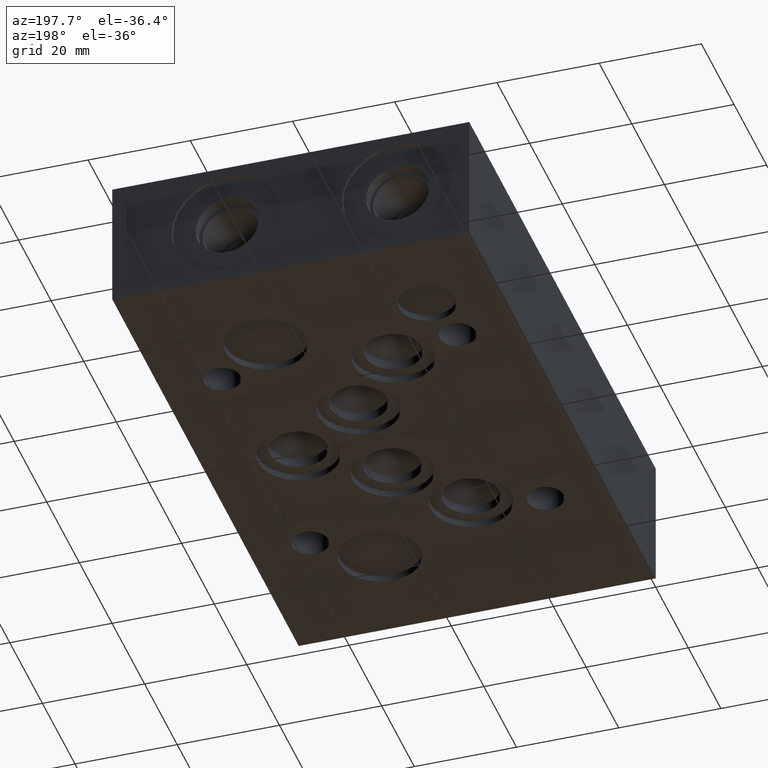
[diagram: clean part render]
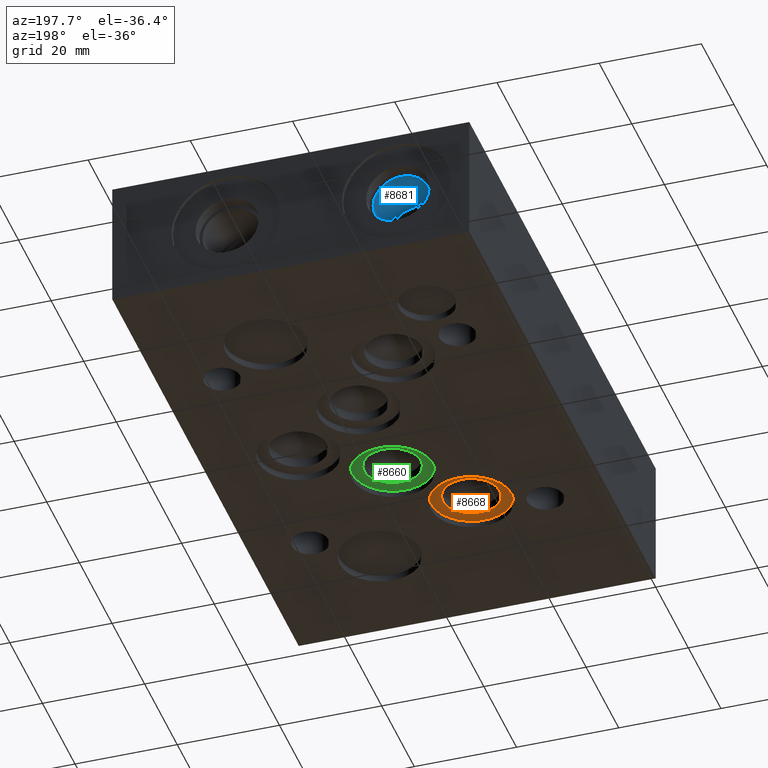
[diagram: same view with three faces highlighted in distinct colors, each labeled with its STEP entity id]
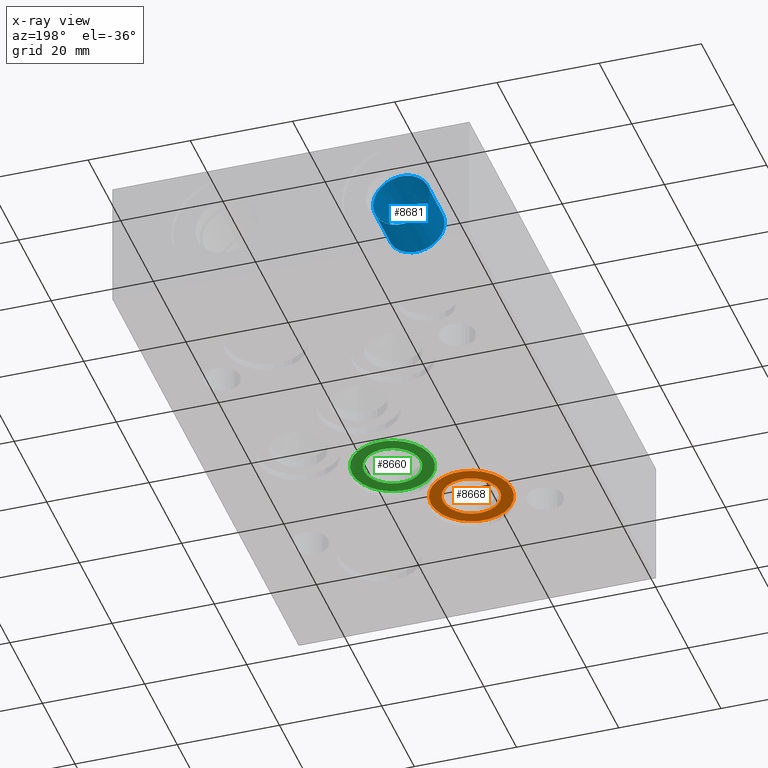
[diagram: x-ray of the same camera — body ghosted, the three highlighted faces saturated]
A machine part, auxiliary view with three faces highlighted in distinct colors.
The next image is the same camera in x-ray (body ghosted, the three faces saturated) — at least one of them is partly hidden behind the body in this view.
Their STEP definitions:

[orange] entity #8668 — the highlighted planar face has unit normal (0, 0, -1).
#50=CIRCLE('',#9076,5.5626);
#62=CIRCLE('',#9099,7.9375);
#220=FACE_BOUND('',#1330,.T.);
#842=FACE_OUTER_BOUND('',#1329,.T.);
#1329=EDGE_LOOP('',(#7284));
#1330=EDGE_LOOP('',(#7285));
#3997=VERTEX_POINT('',#14071);
#4009=VERTEX_POINT('',#14112);
#5113=EDGE_CURVE('',#3997,#3997,#50,.T.);
#5132=EDGE_CURVE('',#4009,#4009,#62,.T.);
#7284=ORIENTED_EDGE('',*,*,#5132,.T.);
#7285=ORIENTED_EDGE('',*,*,#5113,.T.);
#7918=PLANE('',#9100);
#8668=ADVANCED_FACE('',(#842,#220),#7918,.T.);
#9076=AXIS2_PLACEMENT_3D('',#14072,#10750,#10751);
#9099=AXIS2_PLACEMENT_3D('',#14114,#10803,#10804);
#9100=AXIS2_PLACEMENT_3D('',#14115,#10805,#10806);
#10750=DIRECTION('center_axis',(0.,0.,1.));
#10751=DIRECTION('ref_axis',(1.,0.,0.));
#10803=DIRECTION('center_axis',(0.,0.,-1.));
#10804=DIRECTION('ref_axis',(1.,0.,0.));
#10805=DIRECTION('center_axis',(0.,0.,-1.));
#10806=DIRECTION('ref_axis',(1.,0.,0.));
#14071=CARTESIAN_POINT('',(19.8628,33.3502,1.3208));
#14072=CARTESIAN_POINT('Origin',(25.4254,33.3502,1.3208));
#14112=CARTESIAN_POINT('',(17.4879,33.3502,1.3208));
#14114=CARTESIAN_POINT('Origin',(25.4254,33.3502,1.3208));
#14115=CARTESIAN_POINT('Origin',(25.4254,33.3502,1.3208));

[blue] entity #8681 — the highlighted cylindrical surface (bore or boss wall) has radius 5.5626 mm, axis along (0, 1, 0).
#92=CIRCLE('',#9142,5.5626);
#94=CIRCLE('',#9145,5.5626);
#158=CYLINDRICAL_SURFACE('',#9144,5.5626);
#855=FACE_OUTER_BOUND('',#1357,.T.);
#1357=EDGE_LOOP('',(#7358,#7359,#7360,#7361));
#2339=LINE('',#14275,#3276);
#3276=VECTOR('',#10915,5.5626);
#4049=VERTEX_POINT('',#14268);
#4051=VERTEX_POINT('',#14273);
#5183=EDGE_CURVE('',#4049,#4049,#92,.T.);
#5185=EDGE_CURVE('',#4051,#4051,#94,.T.);
#5186=EDGE_CURVE('',#4051,#4049,#2339,.T.);
#7358=ORIENTED_EDGE('',*,*,#5185,.F.);
#7359=ORIENTED_EDGE('',*,*,#5186,.T.);
#7360=ORIENTED_EDGE('',*,*,#5183,.F.);
#7361=ORIENTED_EDGE('',*,*,#5186,.F.);
#8681=ADVANCED_FACE('',(#855),#158,.F.);
#9142=AXIS2_PLACEMENT_3D('',#14269,#10907,#10908);
#9144=AXIS2_PLACEMENT_3D('',#14272,#10911,#10912);
#9145=AXIS2_PLACEMENT_3D('',#14274,#10913,#10914);
#10907=DIRECTION('center_axis',(0.,1.,0.));
#10908=DIRECTION('ref_axis',(1.,0.,0.));
#10911=DIRECTION('center_axis',(0.,1.,0.));
#10912=DIRECTION('ref_axis',(1.,0.,0.));
#10913=DIRECTION('center_axis',(0.,-1.,0.));
#10914=DIRECTION('ref_axis',(1.,0.,0.));
#10915=DIRECTION('',(0.,-1.,0.));
#14268=CARTESIAN_POINT('',(8.7122,102.0064,12.7));
#14269=CARTESIAN_POINT('Origin',(14.2748,102.0064,12.7));
#14272=CARTESIAN_POINT('Origin',(14.2748,108.1532,12.7));
#14273=CARTESIAN_POINT('',(8.7122,111.125,12.7));
#14274=CARTESIAN_POINT('Origin',(14.2748,111.125,12.7));
#14275=CARTESIAN_POINT('',(8.7122,108.1532,12.7));

[green] entity #8660 — the highlighted planar face has unit normal (0, 0, -1).
#46=CIRCLE('',#9068,5.55625);
#54=CIRCLE('',#9083,7.9375);
#216=FACE_BOUND('',#1318,.T.);
#834=FACE_OUTER_BOUND('',#1317,.T.);
#1317=EDGE_LOOP('',(#7260));
#1318=EDGE_LOOP('',(#7261));
#3991=VERTEX_POINT('',#14053);
#4001=VERTEX_POINT('',#14084);
#5105=EDGE_CURVE('',#3991,#3991,#46,.T.);
#5120=EDGE_CURVE('',#4001,#4001,#54,.T.);
#7260=ORIENTED_EDGE('',*,*,#5120,.T.);
#7261=ORIENTED_EDGE('',*,*,#5105,.T.);
#7914=PLANE('',#9084);
#8660=ADVANCED_FACE('',(#834,#216),#7914,.T.);
#9068=AXIS2_PLACEMENT_3D('',#14054,#10730,#10731);
#9083=AXIS2_PLACEMENT_3D('',#14086,#10767,#10768);
#9084=AXIS2_PLACEMENT_3D('',#14087,#10769,#10770);
#10730=DIRECTION('center_axis',(0.,0.,1.));
#10731=DIRECTION('ref_axis',(1.,0.,0.));
#10767=DIRECTION('center_axis',(0.,0.,-1.));
#10768=DIRECTION('ref_axis',(1.,0.,0.));
#10769=DIRECTION('center_axis',(0.,0.,-1.));
#10770=DIRECTION('ref_axis',(1.,0.,0.));
#14053=CARTESIAN_POINT('',(30.98673,46.8376,1.3208));
#14054=CARTESIAN_POINT('Origin',(36.54298,46.8376,1.3208));
#14084=CARTESIAN_POINT('',(28.6131,46.8376,1.3208));
#14086=CARTESIAN_POINT('Origin',(36.5506,46.8376,1.3208));
#14087=CARTESIAN_POINT('Origin',(36.5506,46.8376,1.3208));